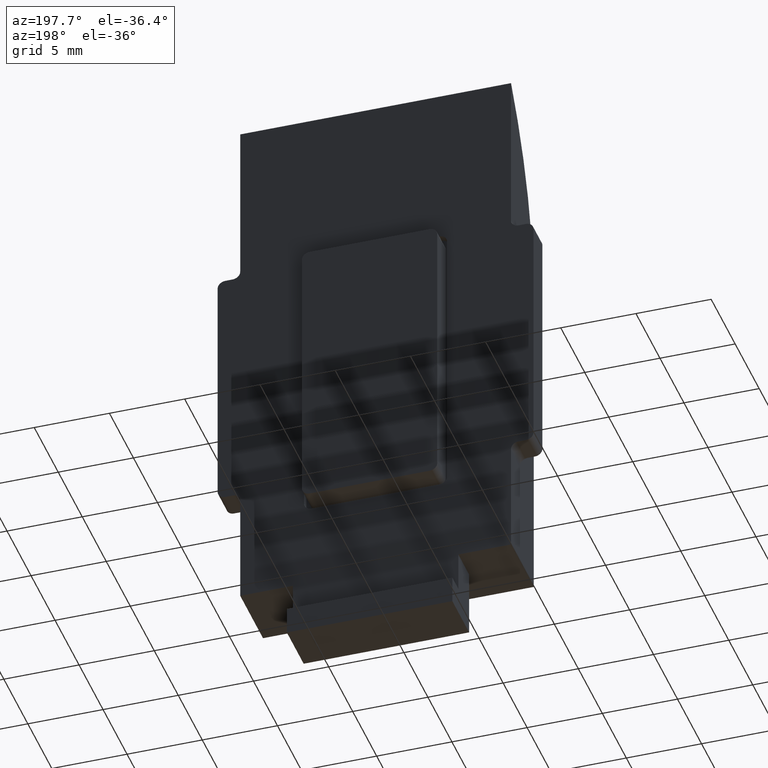
[diagram: clean part render]
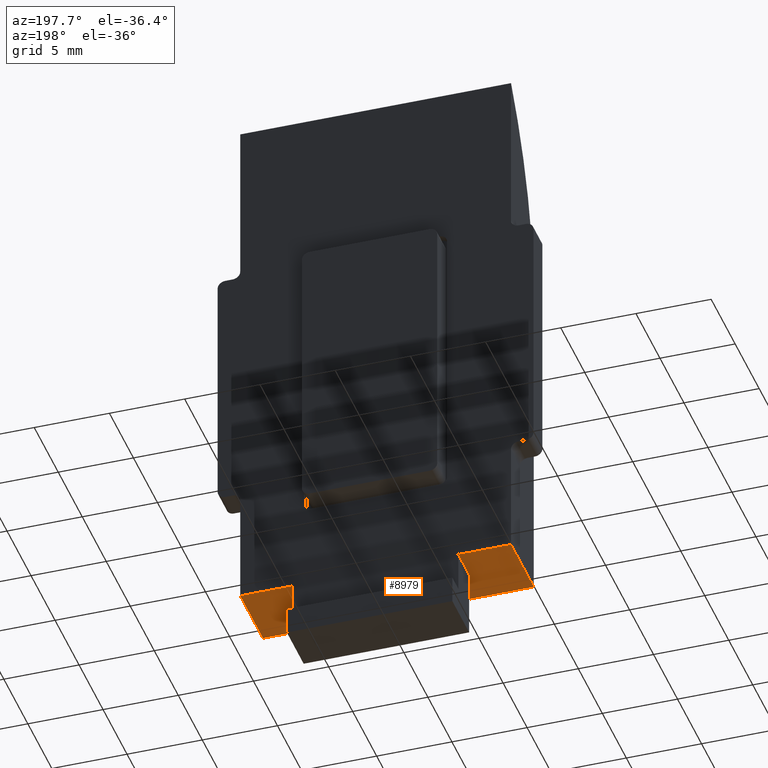
[diagram: same view with one face highlighted and labeled with its STEP entity id]
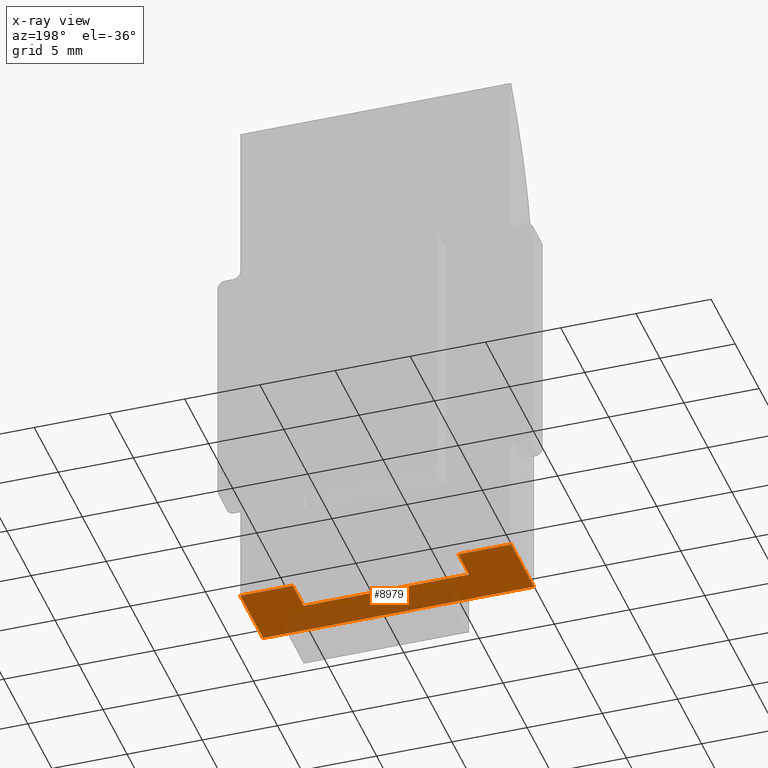
[diagram: x-ray of the same camera — body ghosted, the highlighted face saturated]
A machine part, auxiliary view. The second image highlights one B-rep face of the part: STEP entity #8979.
The next image is the same camera in x-ray: the body ghosted, the highlighted face saturated — about 35% of this face is hidden behind the body in this view.
In plain terms, the highlighted planar face has unit normal (0, 0, -1).
Its self-contained STEP definition (entity closure, byte-faithful):
#218 = EDGE_CURVE ( 'NONE', #12957, #13222, #5319, .T. ) ;
#443 = EDGE_CURVE ( 'NONE', #7742, #2791, #12602, .T. ) ;
#1555 = EDGE_CURVE ( 'NONE', #4528, #7245, #14997, .T. ) ;
#1632 = ORIENTED_EDGE ( 'NONE', *, *, #443, .F. ) ;
#2328 = VERTEX_POINT ( 'NONE', #8080 ) ;
#2629 = VECTOR ( 'NONE', #11021, 1000.000000000000000 ) ;
#2762 = ORIENTED_EDGE ( 'NONE', *, *, #5986, .T. ) ;
#2791 = VERTEX_POINT ( 'NONE', #6785 ) ;
#2857 = CARTESIAN_POINT ( 'NONE',  ( 5.500000000000000000, 2.499999999999987566, -2.081668171172168513E-14 ) ) ;
#3313 = EDGE_CURVE ( 'NONE', #7742, #4528, #14352, .T. ) ;
#3995 = CARTESIAN_POINT ( 'NONE',  ( -9.000000000000000000, 0.000000000000000000, -2.081668171172168513E-14 ) ) ;
#4186 = ORIENTED_EDGE ( 'NONE', *, *, #3313, .T. ) ;
#4244 = DIRECTION ( 'NONE',  ( 0.000000000000000000, -1.000000000000000000, -1.734723475976807094E-16 ) ) ;
#4528 = VERTEX_POINT ( 'NONE', #7132 ) ;
#4608 = VECTOR ( 'NONE', #15992, 1000.000000000000000 ) ;
#5034 = CARTESIAN_POINT ( 'NONE',  ( 9.000000000000000000, -1.040834085586084257E-14, -2.081668171172168513E-14 ) ) ;
#5201 = DIRECTION ( 'NONE',  ( -1.000000000000000000, -0.000000000000000000, -0.000000000000000000 ) ) ;
#5319 = LINE ( 'NONE', #11071, #2629 ) ;
#5345 = CARTESIAN_POINT ( 'NONE',  ( -9.000000000000000000, 4.750000000000001776, -2.081668171172168513E-14 ) ) ;
#5552 = VECTOR ( 'NONE', #4244, 1000.000000000000000 ) ;
#5986 = EDGE_CURVE ( 'NONE', #7245, #7454, #12626, .T. ) ;
#6152 = DIRECTION ( 'NONE',  ( -1.000000000000000000, -0.000000000000000000, -0.000000000000000000 ) ) ;
#6414 = CARTESIAN_POINT ( 'NONE',  ( -5.500000000000000000, -1.734723475976807094E-15, -2.081668171172168513E-14 ) ) ;
#6638 = EDGE_CURVE ( 'NONE', #2791, #13222, #9475, .T. ) ;
#6785 = CARTESIAN_POINT ( 'NONE',  ( -5.500000000000000000, 2.499999999999987566, -2.081668171172168513E-14 ) ) ;
#6994 = ORIENTED_EDGE ( 'NONE', *, *, #218, .T. ) ;
#7132 = CARTESIAN_POINT ( 'NONE',  ( 5.499999999999999112, 4.750000000000001776, -2.081668171172168513E-14 ) ) ;
#7230 = ORIENTED_EDGE ( 'NONE', *, *, #15037, .T. ) ;
#7245 = VERTEX_POINT ( 'NONE', #7826 ) ;
#7454 = VERTEX_POINT ( 'NONE', #8523 ) ;
#7547 = DIRECTION ( 'NONE',  ( 0.000000000000000000, 1.734723475976807094E-16, -1.000000000000000000 ) ) ;
#7595 = AXIS2_PLACEMENT_3D ( 'NONE', #11483, #7547, #10254 ) ;
#7742 = VERTEX_POINT ( 'NONE', #2857 ) ;
#7826 = CARTESIAN_POINT ( 'NONE',  ( 9.000000000000000000, 4.750000000000001776, -2.081668171172168513E-14 ) ) ;
#7914 = LINE ( 'NONE', #5034, #10644 ) ;
#8080 = CARTESIAN_POINT ( 'NONE',  ( -9.000000000000000000, -1.040834085586084257E-14, -2.081668171172168513E-14 ) ) ;
#8149 = CARTESIAN_POINT ( 'NONE',  ( 5.499999999999998224, -3.035766082959412415E-15, -2.081668171172168513E-14 ) ) ;
#8205 = VECTOR ( 'NONE', #6152, 1000.000000000000000 ) ;
#8290 = ORIENTED_EDGE ( 'NONE', *, *, #6638, .F. ) ;
#8523 = CARTESIAN_POINT ( 'NONE',  ( 9.000000000000000000, -1.040834085586084257E-14, -2.081668171172168513E-14 ) ) ;
#8979 = ADVANCED_FACE ( 'NONE', ( #16903 ), #15359, .T. ) ;
#9060 = CARTESIAN_POINT ( 'NONE',  ( 9.000000000000000000, 4.750000000000001776, -2.081668171172168513E-14 ) ) ;
#9218 = DIRECTION ( 'NONE',  ( 1.000000000000000000, 0.000000000000000000, 0.000000000000000000 ) ) ;
#9475 = LINE ( 'NONE', #6414, #13202 ) ;
#10224 = EDGE_CURVE ( 'NONE', #12957, #2328, #17062, .T. ) ;
#10254 = DIRECTION ( 'NONE',  ( 0.000000000000000000, 1.000000000000000000, 1.734723475976807094E-16 ) ) ;
#10644 = VECTOR ( 'NONE', #5201, 1000.000000000000000 ) ;
#10702 = VECTOR ( 'NONE', #9218, 1000.000000000000000 ) ;
#11021 = DIRECTION ( 'NONE',  ( 1.000000000000000000, 0.000000000000000000, 0.000000000000000000 ) ) ;
#11051 = CARTESIAN_POINT ( 'NONE',  ( 9.000000000000000000, 0.000000000000000000, -2.081668171172168513E-14 ) ) ;
#11071 = CARTESIAN_POINT ( 'NONE',  ( 9.000000000000000000, 4.750000000000001776, -2.081668171172168513E-14 ) ) ;
#11483 = CARTESIAN_POINT ( 'NONE',  ( 9.000000000000000000, 0.000000000000000000, -2.081668171172168513E-14 ) ) ;
#11757 = DIRECTION ( 'NONE',  ( -0.000000000000000000, 1.000000000000000000, 1.734723475976807094E-16 ) ) ;
#12602 = LINE ( 'NONE', #13763, #8205 ) ;
#12626 = LINE ( 'NONE', #11051, #5552 ) ;
#12957 = VERTEX_POINT ( 'NONE', #5345 ) ;
#13202 = VECTOR ( 'NONE', #11757, 1000.000000000000000 ) ;
#13222 = VERTEX_POINT ( 'NONE', #14981 ) ;
#13763 = CARTESIAN_POINT ( 'NONE',  ( 9.000000000000000000, 2.499999999999989342, -2.081668171172168513E-14 ) ) ;
#14047 = EDGE_LOOP ( 'NONE', ( #15329, #6994, #8290, #1632, #4186, #14625, #2762, #7230 ) ) ;
#14352 = LINE ( 'NONE', #8149, #16430 ) ;
#14625 = ORIENTED_EDGE ( 'NONE', *, *, #1555, .T. ) ;
#14981 = CARTESIAN_POINT ( 'NONE',  ( -5.500000000000000000, 4.750000000000001776, -2.081668171172168513E-14 ) ) ;
#14997 = LINE ( 'NONE', #9060, #10702 ) ;
#15037 = EDGE_CURVE ( 'NONE', #7454, #2328, #7914, .T. ) ;
#15329 = ORIENTED_EDGE ( 'NONE', *, *, #10224, .F. ) ;
#15359 = PLANE ( 'NONE',  #7595 ) ;
#15992 = DIRECTION ( 'NONE',  ( 0.000000000000000000, -1.000000000000000000, -1.734723475976807094E-16 ) ) ;
#16097 = DIRECTION ( 'NONE',  ( 2.478176394252582127E-16, 1.000000000000000000, 1.734723475976807094E-16 ) ) ;
#16430 = VECTOR ( 'NONE', #16097, 1000.000000000000000 ) ;
#16903 = FACE_OUTER_BOUND ( 'NONE', #14047, .T. ) ;
#17062 = LINE ( 'NONE', #3995, #4608 ) ;